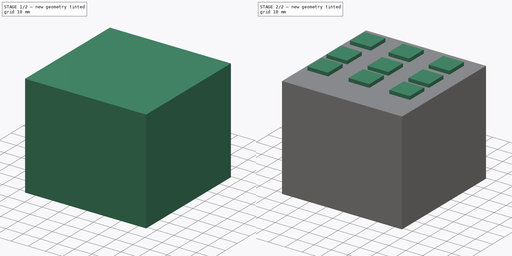
[diagram: build sequence overview — one tinted view per stage of 2, left to right]
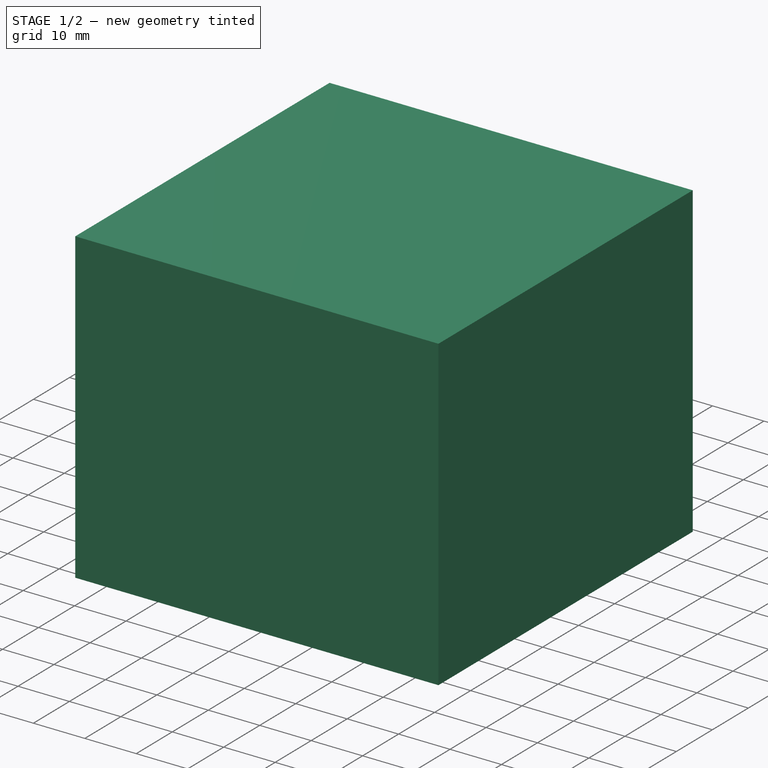
[diagram: stage 1 of 2 — iso view after this stage's code; geometry added in this stage tinted green]
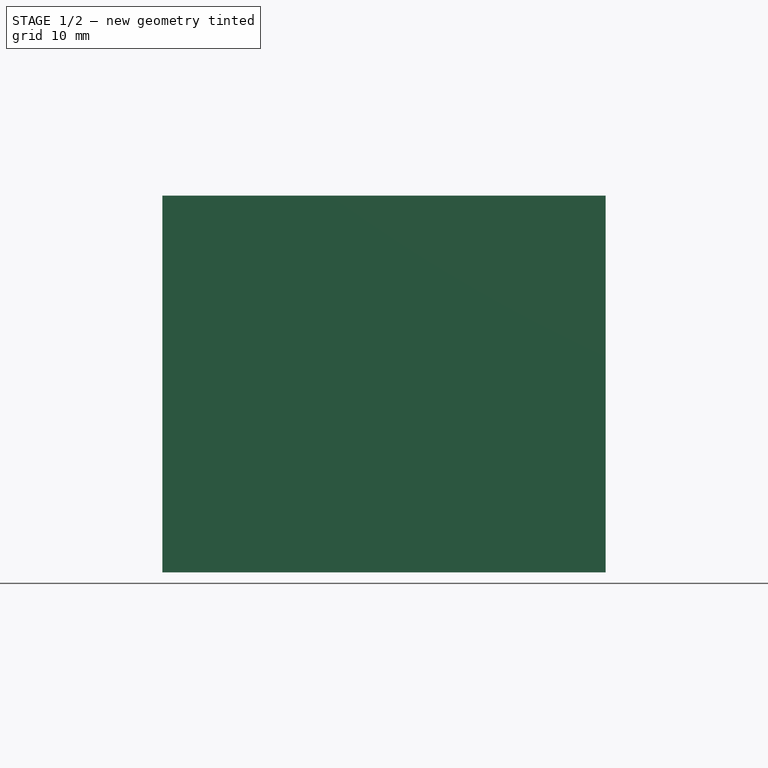
[diagram: stage 1 of 2 — front view after this stage's code; geometry added in this stage tinted green]
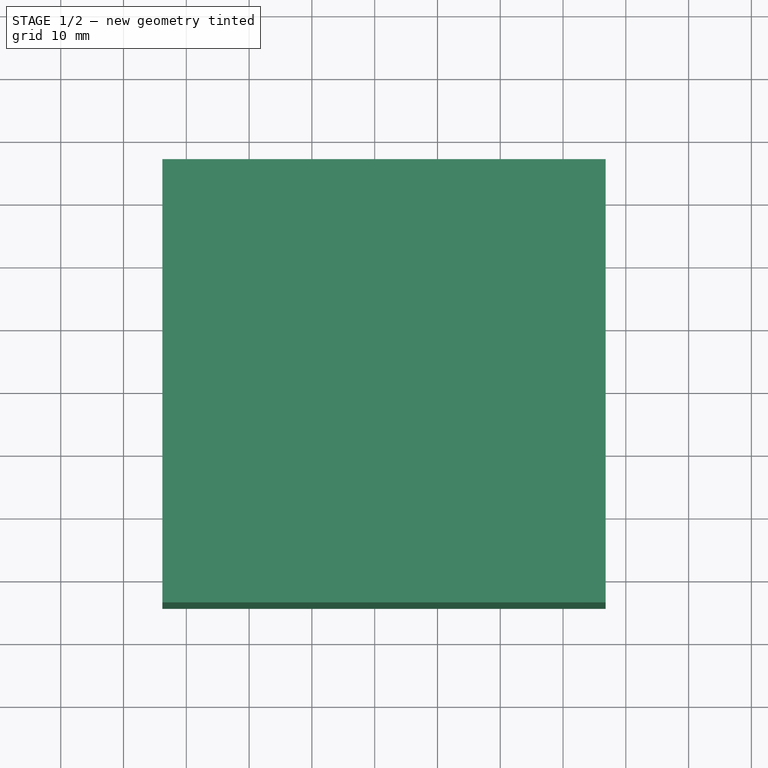
[diagram: stage 1 of 2 — top view after this stage's code; geometry added in this stage tinted green]
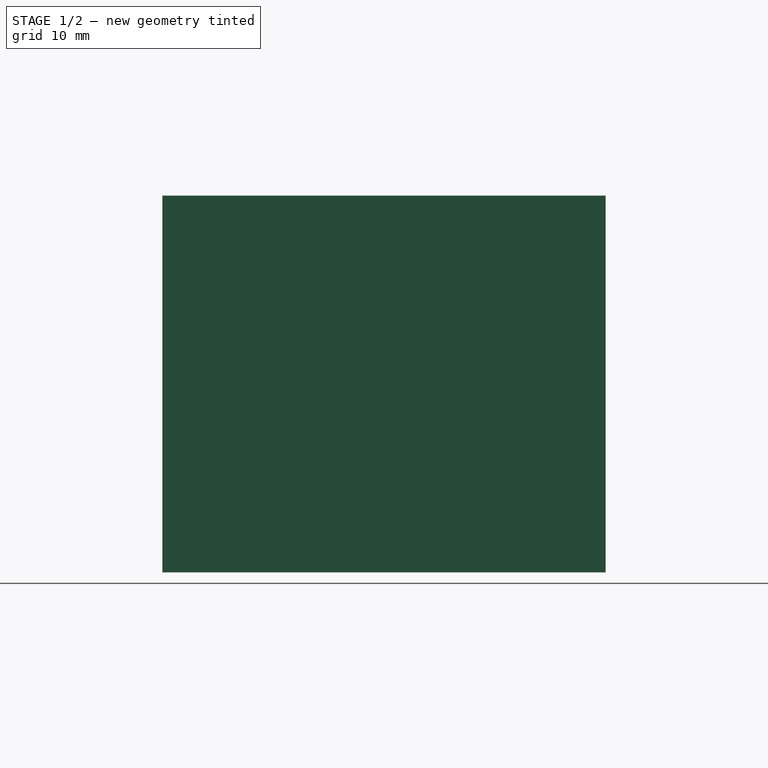
[diagram: stage 1 of 2 — right view after this stage's code; geometry added in this stage tinted green]
FCSTD DOCUMENT  (FreeCAD 0.19R24291 (Git))
Label: verstak
License: All rights reserved
LicenseURL: http://en.wikipedia.org/wiki/All_rights_reserved
objects: Sketcher::SketchObject×4, PartDesign::Pad×2, PartDesign::Body×1
note: 9 computed .brp shape members not serialized (recipe doc carries the construction recipe); baked Part::Feature solids carry a one-line shape summary decoded from their .brp

FEATURE [Sketcher::SketchObject] Sketch
  FullyConstrained = false
  MapMode = 5
  Support = -> [XY_Plane]
  sketch-geometry (4):
    g0: LineSegment StartX=-33.8182 StartY=36.2617 StartZ=0 EndX=36.7879 EndY=36.2617 EndZ=0
    g1: LineSegment StartX=36.7879 StartY=36.2617 StartZ=0 EndX=36.7879 EndY=-34.3444 EndZ=0
    g2: LineSegment StartX=36.7879 StartY=-34.3444 StartZ=0 EndX=-33.8182 EndY=-34.3444 EndZ=0
    g3: LineSegment StartX=-33.8182 StartY=-34.3444 StartZ=0 EndX=-33.8182 EndY=36.2617 EndZ=0
  constraints (9):
    c: Coincident(g0,g1)
    c: Coincident(g1,g2)
    c: Coincident(g2,g3)
    c: Coincident(g3,g0)
    c: Horizontal(g0)
    c: Horizontal(g2)
    c: Vertical(g1)
    c: Vertical(g3)
    c: Equal(g0,g1)
FEATURE [PartDesign::Pad] Pad
  Direction = (1,1,1)
  Length = 60
  Length2 = 100
  Profile = -> Sketch
  Type = 0
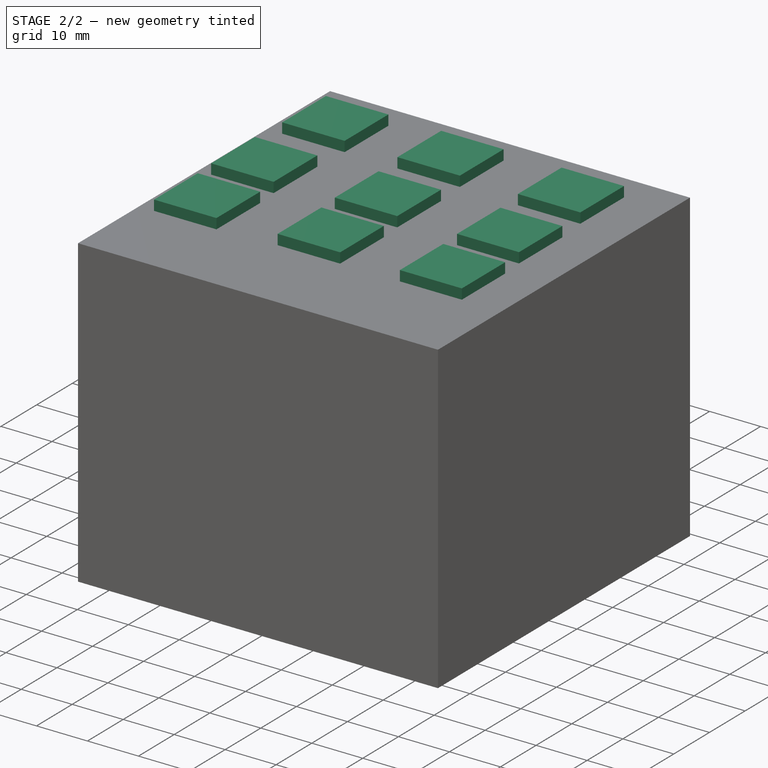
[diagram: stage 2 of 2 — iso view after this stage's code; geometry added in this stage tinted green]
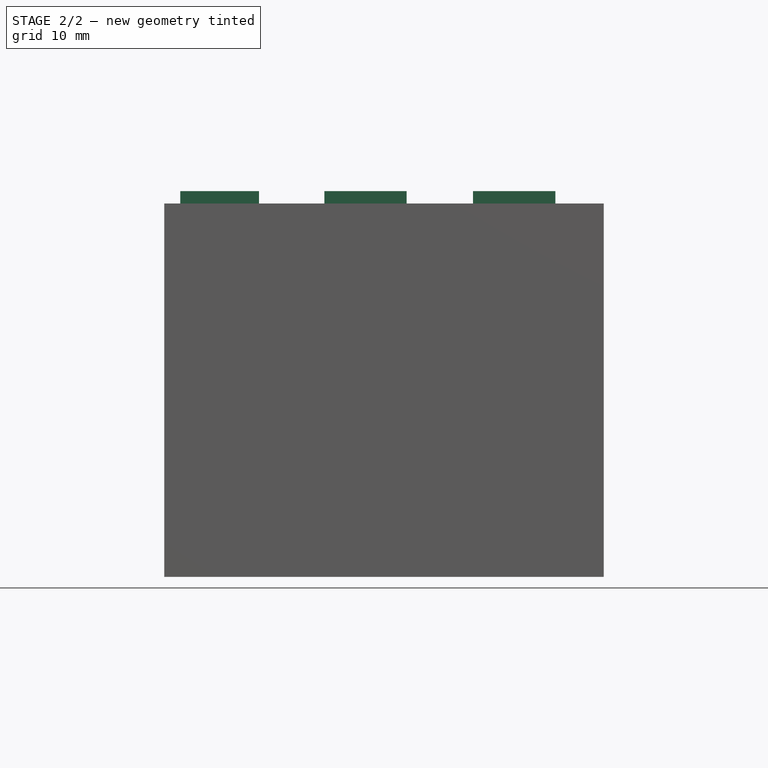
[diagram: stage 2 of 2 — front view after this stage's code; geometry added in this stage tinted green]
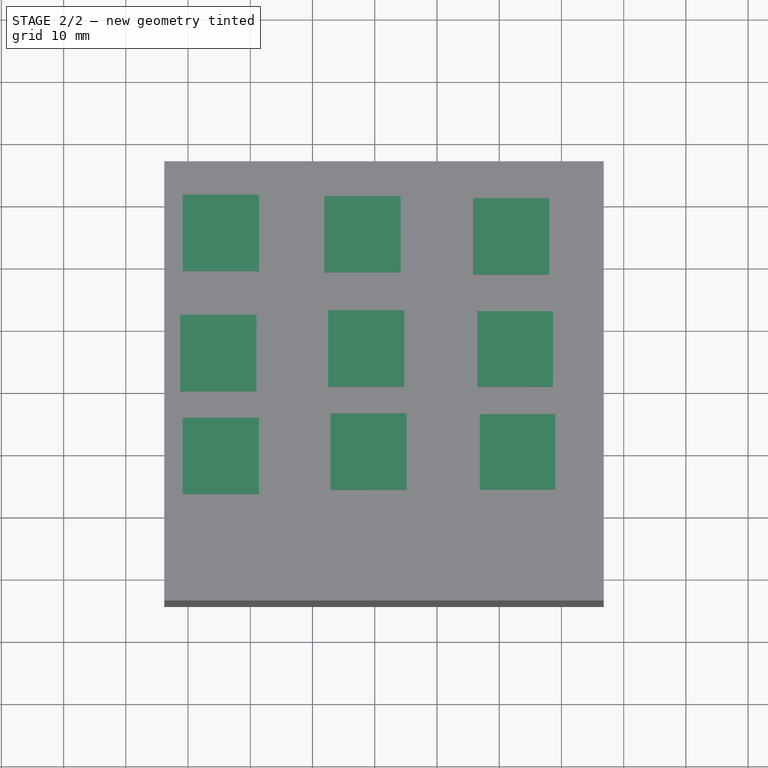
[diagram: stage 2 of 2 — top view after this stage's code; geometry added in this stage tinted green]
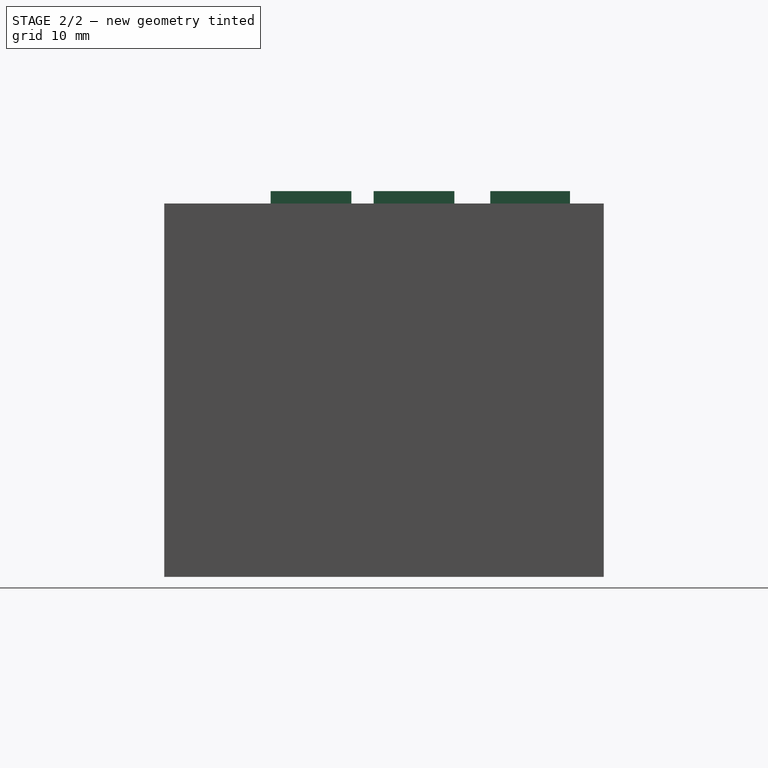
[diagram: stage 2 of 2 — right view after this stage's code; geometry added in this stage tinted green]
FEATURE [Sketcher::SketchObject] Sketch001
  FullyConstrained = true
  MapMode = 5
  Support = -> [XY_Plane]
FEATURE [Sketcher::SketchObject] Sketch002
  FullyConstrained = false
  MapMode = 5
  Placement = pos=(0,0,60) rot=(0,0,1;0rad)
  Support = -> [Pad]
  sketch-geometry (36):
    g0: LineSegment StartX=-30.8453 StartY=30.852 StartZ=0 EndX=-18.5953 EndY=30.852 EndZ=0
    g1: LineSegment StartX=-18.5953 StartY=30.852 StartZ=0 EndX=-18.5953 EndY=18.602 EndZ=0
    g2: LineSegment StartX=-18.5953 StartY=18.602 StartZ=0 EndX=-30.8453 EndY=18.602 EndZ=0
    g3: LineSegment StartX=-30.8453 StartY=18.602 StartZ=0 EndX=-30.8453 EndY=30.852 EndZ=0
    g4: LineSegment StartX=-8.08736 StartY=30.6409 StartZ=0 EndX=4.16264 EndY=30.6409 EndZ=0
    g5: LineSegment StartX=4.16264 StartY=30.6409 StartZ=0 EndX=4.16264 EndY=18.3909 EndZ=0
    g6: LineSegment StartX=4.16264 StartY=18.3909 StartZ=0 EndX=-8.08736 EndY=18.3909 EndZ=0
    g7: LineSegment StartX=-8.08736 StartY=18.3909 StartZ=0 EndX=-8.08736 EndY=30.6409 EndZ=0
    g8: LineSegment StartX=15.7936 StartY=30.2809 StartZ=0 EndX=28.0436 EndY=30.2809 EndZ=0
    g9: LineSegment StartX=28.0436 StartY=30.2809 StartZ=0 EndX=28.0436 EndY=18.0309 EndZ=0
    g10: LineSegment StartX=28.0436 StartY=18.0309 StartZ=0 EndX=15.7936 EndY=18.0309 EndZ=0
    g11: LineSegment StartX=15.7936 StartY=18.0309 StartZ=0 EndX=15.7936 EndY=30.2809 EndZ=0
    g12: LineSegment StartX=-31.2578 StartY=11.546 StartZ=0 EndX=-19.0078 EndY=11.546 EndZ=0
    g13: LineSegment StartX=-19.0078 StartY=11.546 StartZ=0 EndX=-19.0078 EndY=-0.703958 EndZ=0
    g14: LineSegment StartX=-31.2578 StartY=-0.703958 StartZ=0 EndX=-31.2578 EndY=11.546 EndZ=0
    g15: LineSegment StartX=-19.0078 StartY=-0.703958 StartZ=0 EndX=-31.2578 EndY=-0.703958 EndZ=0
    g16: LineSegment StartX=-7.50629 StartY=12.2661 StartZ=0 EndX=4.74371 EndY=12.2661 EndZ=0
    g17: LineSegment StartX=4.74371 StartY=0.0160706 StartZ=0 EndX=-7.50629 EndY=0.0160706 EndZ=0
    g18: LineSegment StartX=-7.50629 StartY=0.0160706 StartZ=0 EndX=-7.50629 EndY=12.2661 EndZ=0
    g19: LineSegment StartX=4.74371 StartY=12.2661 StartZ=0 EndX=4.74371 EndY=0.0160706 EndZ=0
    g20: LineSegment StartX=16.4881 StartY=12.1461 StartZ=0 EndX=28.6342 EndY=12.1461 EndZ=0
    g21: LineSegment StartX=28.6342 StartY=12.1461 StartZ=0 EndX=28.6342 EndY=0 EndZ=0
    g22: LineSegment StartX=28.6342 StartY=0 StartZ=0 EndX=16.4881 EndY=0 EndZ=0
    g23: LineSegment StartX=16.4881 StartY=0 StartZ=0 EndX=16.4881 EndY=12.1461 EndZ=0
    g24: LineSegment StartX=-30.8781 StartY=-5.00571 StartZ=0 EndX=-18.6281 EndY=-5.00571 EndZ=0
    g25: LineSegment StartX=-18.6281 StartY=-5.00571 StartZ=0 EndX=-18.6281 EndY=-17.2557 EndZ=0
    g26: LineSegment StartX=-18.6281 StartY=-17.2557 StartZ=0 EndX=-30.8781 EndY=-17.2557 EndZ=0
    g27: LineSegment StartX=-7.12659 StartY=-4.28568 StartZ=0 EndX=5.12341 EndY=-4.28568 EndZ=0
    g28: LineSegment StartX=5.12341 StartY=-16.5357 StartZ=0 EndX=-7.12659 EndY=-16.5357 EndZ=0
    g29: LineSegment StartX=-7.12659 StartY=-16.5357 StartZ=0 EndX=-7.12659 EndY=-4.28568 EndZ=0
    g30: LineSegment StartX=5.12341 StartY=-4.28568 StartZ=0 EndX=5.12341 EndY=-16.5357 EndZ=0
    g31: LineSegment StartX=16.8678 StartY=-4.40568 StartZ=0 EndX=29.0139 EndY=-4.40568 EndZ=0
    g32: LineSegment StartX=29.0139 StartY=-16.5517 StartZ=0 EndX=16.8678 EndY=-16.5517 EndZ=0
    g33: LineSegment StartX=16.8678 StartY=-16.5517 StartZ=0 EndX=16.8678 EndY=-4.40568 EndZ=0
    g34: LineSegment StartX=-30.8781 StartY=-17.2557 StartZ=0 EndX=-30.8781 EndY=-5.00571 EndZ=0
    g35: LineSegment StartX=29.0139 StartY=-4.40568 StartZ=0 EndX=29.0139 EndY=-16.5517 EndZ=0
  constraints (85):
    c: Coincident(g0,g1)
    c: Coincident(g1,g2)
    c: Coincident(g2,g3)
    c: Coincident(g3,g0)
    c: Horizontal(g0)
    c: Horizontal(g2)
    c: Vertical(g1)
    c: Vertical(g3)
    c: Equal(g0,g1)
    c: DistanceY(g1,g1) = 12.25
    c: Coincident(g4,g5)
    c: Coincident(g5,g6)
    c: Coincident(g6,g7)
    c: Coincident(g7,g4)
    c: Horizontal(g4)
    c: Horizontal(g6)
    c: Vertical(g5)
    c: Vertical(g7)
    c: Equal(g4,g5)
    c: Equal(g1,g5) = 12.25
    c: Coincident(g8,g9)
    c: Coincident(g9,g10)
    c: Coincident(g10,g11)
    c: Coincident(g11,g8)
    c: Horizontal(g8)
    c: Horizontal(g10)
    c: Vertical(g9)
    c: Vertical(g11)
    c: Equal(g8,g9)
    c: Coincident(g12,g13)
    c: Coincident(g13,g15)
    c: Coincident(g15,g14)
    c: Coincident(g14,g12)
    c: Horizontal(g12)
    c: Horizontal(g15)
    c: Vertical(g13)
    c: Vertical(g14)
    c: Equal(g12,g13)
    c: Equal(g1,g13) = 12.25
    c: Coincident(g16,g19)
    c: Coincident(g19,g17)
    c: Coincident(g17,g18)
    c: Coincident(g18,g16)
    c: Horizontal(g16)
    c: Horizontal(g17)
    c: Vertical(g19)
    c: Vertical(g18)
    c: Equal(g16,g19)
    c: Coincident(g20,g21)
    c: Coincident(g21,g22)
    c: Coincident(g22,g23)
    c: Coincident(g23,g20)
    c: Horizontal(g20)
    c: Horizontal(g22)
    c: Vertical(g21)
    c: Vertical(g23)
    c: Equal(g20,g21)
    c: PointOnObject(g23,g-1)
    c: Coincident(g24,g25)
    c: Coincident(g25,g26)
    c: Coincident(g26,g34)
    c: Coincident(g34,g24)
    c: Horizontal(g24)
    c: Horizontal(g26)
    c: Vertical(g25)
    c: Vertical(g34)
    c: Equal(g24,g25)
    c: Coincident(g27,g30)
    c: Coincident(g30,g28)
    c: Coincident(g28,g29)
    c: Coincident(g29,g27)
    c: Horizontal(g27)
    c: Horizontal(g28)
    c: Vertical(g30)
    c: Vertical(g29)
    c: Equal(g27,g30)
    c: Coincident(g31,g35)
    c: Coincident(g35,g32)
    c: Coincident(g32,g33)
    c: Coincident(g33,g31)
    c: Horizontal(g31)
    c: Horizontal(g32)
    c: Vertical(g35)
    c: Vertical(g33)
    c: Equal(g31,g35)
FEATURE [PartDesign::Pad] Pad001
  BaseFeature = -> Pad
  Direction = (1,1,1)
  Length = 2
  Length2 = 100
  Profile = -> Sketch002
  Type = 0
FEATURE [Sketcher::SketchObject] Sketch003
  FullyConstrained = true
  MapMode = 5
  Support = -> [XY_Plane]
FEATURE [PartDesign::Body] Body
  Group = -> [Sketch,Pad,Sketch001,Sketch002,Pad001,Sketch003]
  Origin = -> Origin
  Tip = -> Pad001
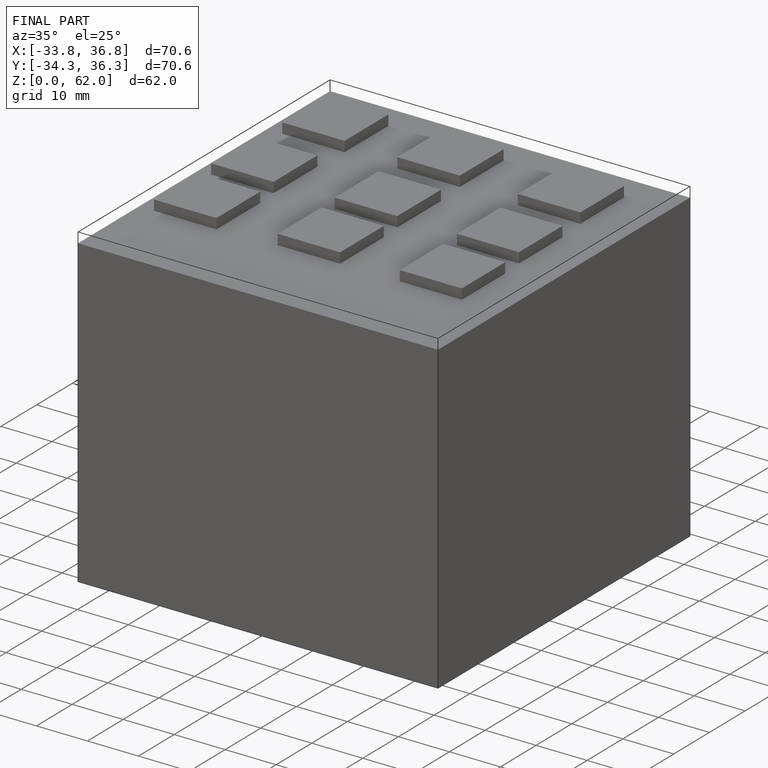
[diagram: finished part — iso view with bounding-box wireframe]
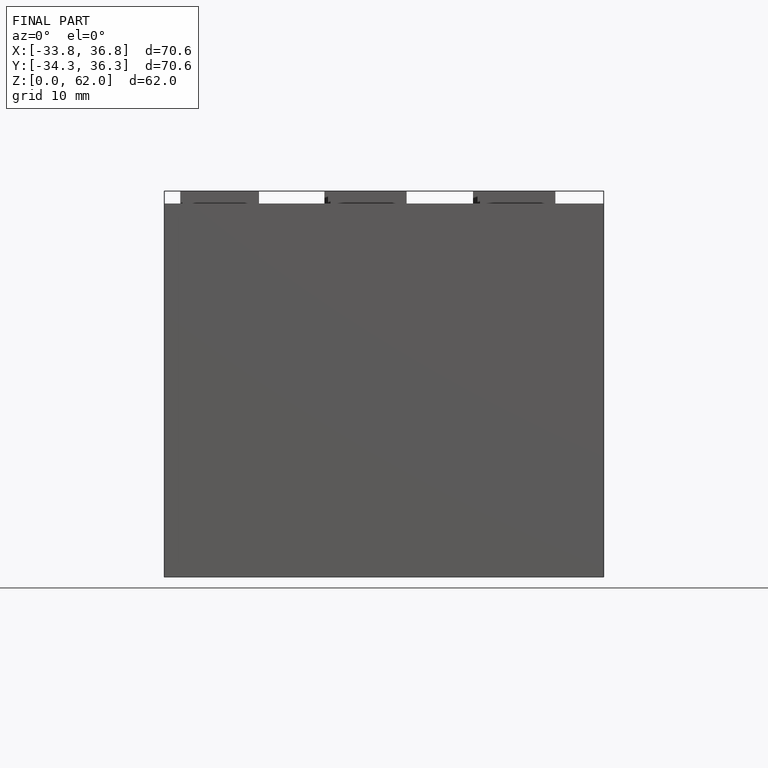
[diagram: finished part — front view with bounding-box wireframe]
